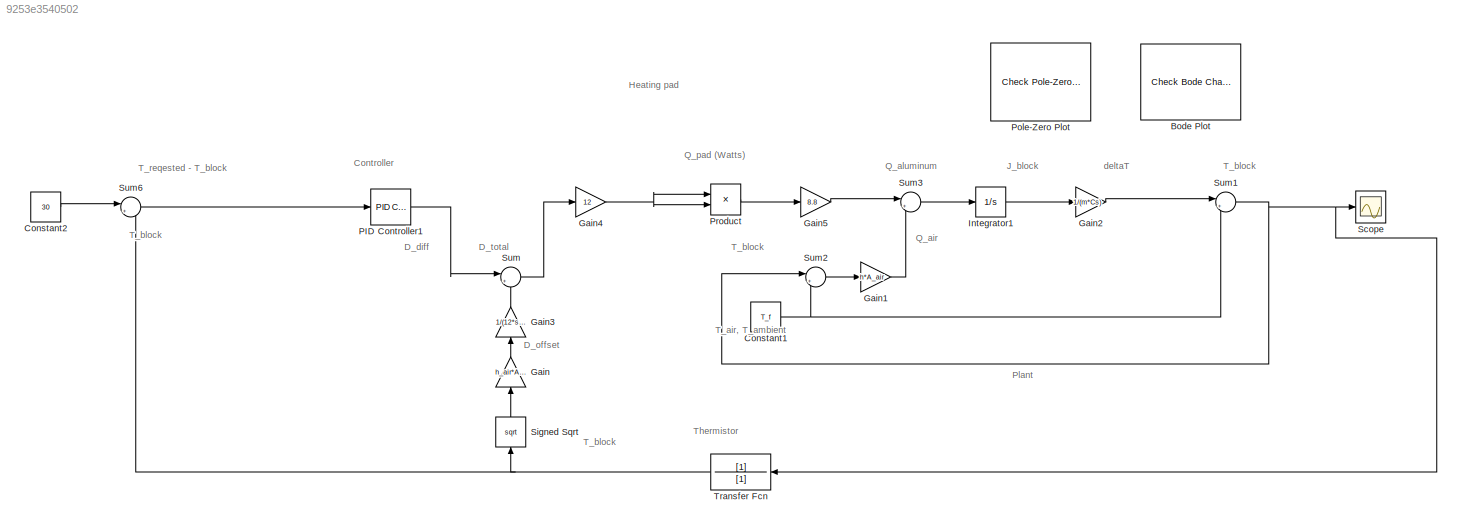
MODEL slx_9253e3540502
KIND model
CONFIG AbsTol = auto
CONFIG EnableMultiTasking = off
CONFIG FixedStep = auto
CONFIG MaxStep = auto
CONFIG MinStep = auto
CONFIG RelTol = 1e-3
CONFIG SampleTimeConstraint = Unconstrained
CONFIG SolverName = VariableStepAuto
CONFIG StartTime = 0.0
CONFIG StopTime = 10.0
BLOCK [Reference] Bode Plot  REF=slctrl_linear/Check Bode 
Characteristics
  InstantiateOnLoad = on
  LibrarySourceBlock = slctrlblks/Linear Analysis Plots/Bode Plot
  SourceBlock = slctrl_linear/Check Bode \nCharacteristics
  SourceType = Checks_Bode
BLOCK [Constant] Constant1
  Value = T_f
BLOCK [Constant] Constant2
  Value = 30
BLOCK [Gain] Gain
  Gain = h_air*A_air
  NameLocation = right
BLOCK [Gain] Gain1
  Gain = h*A_air
BLOCK [Gain] Gain2
  Gain = 1/(m*Cs)
BLOCK [Gain] Gain3
  Gain = 1/(12*sqrt(8.8))
  NameLocation = right
BLOCK [Gain] Gain4
  Gain = 12
BLOCK [Gain] Gain5
  Gain = 8.8
BLOCK [Integrator] Integrator1
BLOCK [Reference] PID Controller1  REF=slpidlib/PID Controller
  LibrarySourceBlock = simulink/Continuous/PID Controller
  SourceBlock = slpidlib/PID Controller
  SourceType = PID 1dof
BLOCK [Reference] Pole-Zero Plot  REF=slctrl_linear/Check Pole-Zero
Characteristics
  InstantiateOnLoad = on
  LibrarySourceBlock = slctrlblks/Linear Analysis Plots/Pole-Zero Plot
  SourceBlock = slctrl_linear/Check Pole-Zero\nCharacteristics
  SourceType = Checks_PZMap
BLOCK [Product] Product
BLOCK [Scope] Scope
  Floating = off
  NumInputPorts = 1
  ScopeSpecificationString = Simulink.scopes.TimeScopeBlockCfg('CurrentConfiguration', extmgr.ConfigurationSet(extmgr.Configuration('Core','General UI',true),extmgr.Configuration('Core','Source UI',true),extmgr.Configuration('Sources','WiredSimulink',true),extmgr.Configuration('Visuals','Time Domain',true,'SerializedDisplays',{struct('MinYLimReal','13.64504','MaxYLimReal','26.26303','YLabelReal','','MinYLimMag','13.64504','Ma...<+1419ch>
BLOCK [Sqrt] Signed Sqrt
  NameLocation = right
BLOCK [Sum] Sum
  Inputs = |++
BLOCK [Sum] Sum1
  Inputs = |++
BLOCK [Sum] Sum2
  Inputs = |+-
BLOCK [Sum] Sum3
  Inputs = |+-
BLOCK [Sum] Sum6
  Inputs = |+-
BLOCK [TransferFcn] Transfer Fcn
  Denominator = [1]
  NameLocation = top
ANNOTATION (root): Controller
ANNOTATION (root): D_diff
ANNOTATION (root): D_offset
ANNOTATION (root): D_total
ANNOTATION (root): Heating pad
ANNOTATION (root): J_block
ANNOTATION (root): Plant
ANNOTATION (root): Q_air
ANNOTATION (root): Q_aluminum
ANNOTATION (root): Q_pad (Watts)
ANNOTATION (root): T_air, T_ambient
ANNOTATION (root): T_block
ANNOTATION (root): T_reqested - T_block
ANNOTATION (root): Thermistor
ANNOTATION (root): deltaT
NET Constant1:1 -> Sum1:2, Sum2:2
LINE Constant2:1 -> Sum6:1
LINE Gain1:1 -> Sum3:2
LINE Gain2:1 -> Sum1:1
LINE Gain3:1 -> Sum:2
NET Gain4:1 -> Product:1, Product:2
LINE Gain5:1 -> Sum3:1
LINE Gain:1 -> Gain3:1
LINE Integrator1:1 -> Gain2:1
LINE PID Controller1:1 -> Sum:1
LINE Product:1 -> Gain5:1
LINE Signed Sqrt:1 -> Gain:1
NET Sum1:1 -> Scope:1, Sum2:1, Transfer Fcn:1
LINE Sum2:1 -> Gain1:1
LINE Sum3:1 -> Integrator1:1
LINE Sum6:1 -> PID Controller1:1
LINE Sum:1 -> Gain4:1
NET Transfer Fcn:1 -> Signed Sqrt:1, Sum6:2
note: NET lines group one-source signal fan-out (src -> all destinations, sorted); 1:1 wires keep LINE
